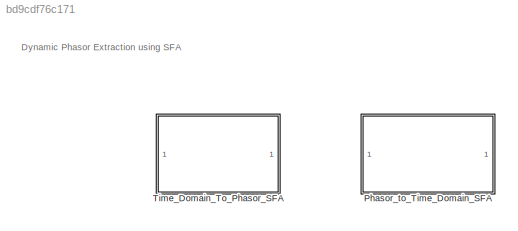
MODEL slx_bd9cdf76c171
KIND model
CONFIG AbsTol = auto
CONFIG EnableMultiTasking = off
CONFIG FixedStep = auto
CONFIG MaxStep = auto
CONFIG MinStep = auto
CONFIG RelTol = 1e-3
CONFIG SampleTimeConstraint = Unconstrained
CONFIG SolverName = VariableStepAuto
CONFIG StartTime = 0.0
CONFIG StopTime = 10.0
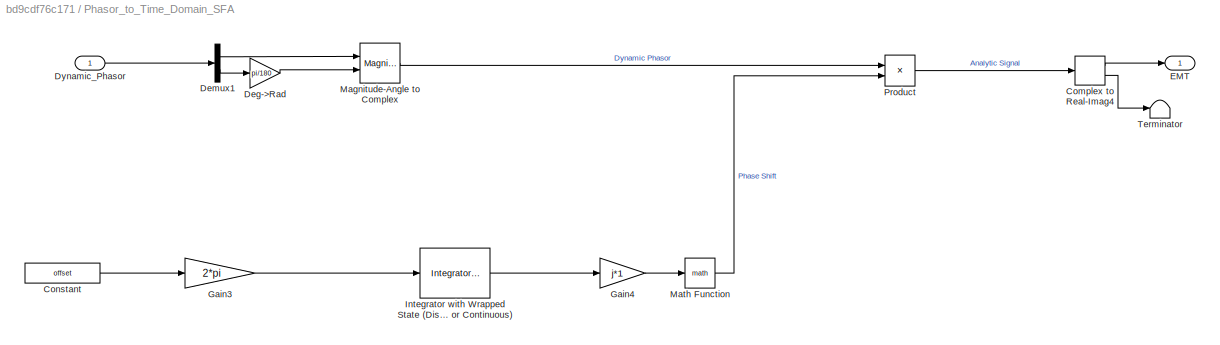
BLOCK [SubSystem] Phasor_to_Time_Domain_SFA
  Ports = [1, 1]
  RequestExecContextInheritance = off
BLOCK [ComplexToRealImag] Phasor_to_Time_Domain_SFA/Complex to Real-Imag4
  Ports = [1, 2]
BLOCK [Constant] Phasor_to_Time_Domain_SFA/Constant
  Value = offset
BLOCK [Gain] Phasor_to_Time_Domain_SFA/Deg->Rad
  Gain = pi/180
BLOCK [Demux] Phasor_to_Time_Domain_SFA/Demux1
  Outputs = 2
  Ports = [1, 2]
BLOCK [Inport] Phasor_to_Time_Domain_SFA/Dynamic_Phasor
BLOCK [Outport] Phasor_to_Time_Domain_SFA/EMT
BLOCK [Gain] Phasor_to_Time_Domain_SFA/Gain3
  Gain = 2*pi
BLOCK [Gain] Phasor_to_Time_Domain_SFA/Gain4
  Gain = j*1
BLOCK [Reference] Phasor_to_Time_Domain_SFA/Integrator with Wrapped State (Discrete or Continuous)  REF=eeGeneralControl/Integrator with
Wrapped State
(Discrete or Continuous)
  Ports = [1, 1]
  SourceBlock = eeGeneralControl/Integrator with\nWrapped State\n(Discrete or Continuous)
  SourceProductBaseCode = PS
  SourceType = Integrator with Wrapped State (Discrete or Continuous)
BLOCK [MagnitudeAngleToComplex] Phasor_to_Time_Domain_SFA/Magnitude-Angle to Complex
  Ports = [2, 1]
BLOCK [Math] Phasor_to_Time_Domain_SFA/Math Function
  Ports = [1, 1]
BLOCK [Product] Phasor_to_Time_Domain_SFA/Product
  Ports = [2, 1]
BLOCK [Terminator] Phasor_to_Time_Domain_SFA/Terminator
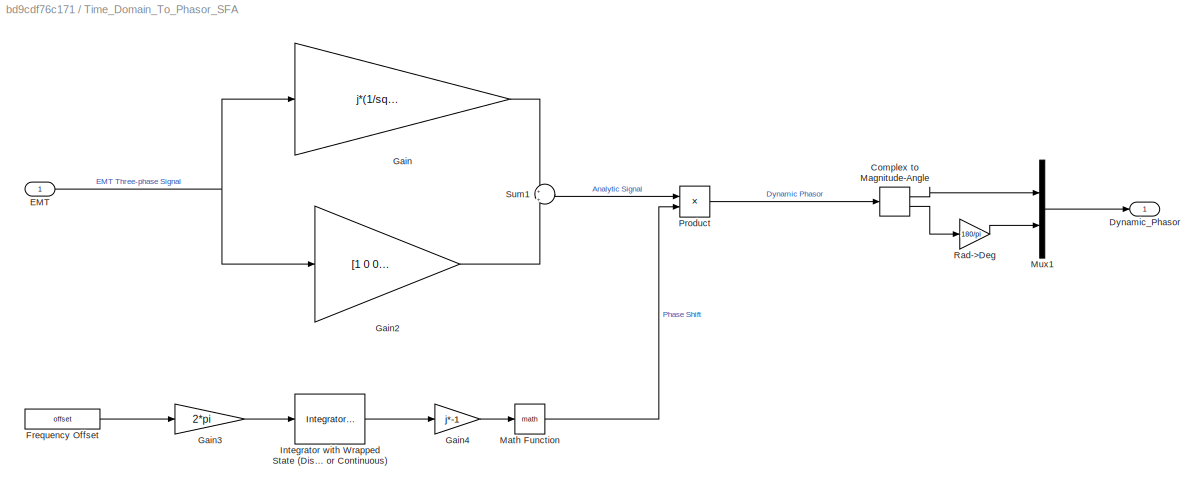
BLOCK [SubSystem] Time_Domain_To_Phasor_SFA
  Ports = [1, 1]
  RequestExecContextInheritance = off
BLOCK [ComplexToMagnitudeAngle] Time_Domain_To_Phasor_SFA/Complex to Magnitude-Angle
  Ports = [1, 2]
BLOCK [Outport] Time_Domain_To_Phasor_SFA/Dynamic_Phasor
BLOCK [Inport] Time_Domain_To_Phasor_SFA/EMT
BLOCK [Constant] Time_Domain_To_Phasor_SFA/Frequency Offset
  Value = offset
BLOCK [Gain] Time_Domain_To_Phasor_SFA/Gain
  Gain = j*(1/sqrt(3))*[0 1 -1; -1 0 1; 1 -1 0]
  Multiplication = Matrix(K*u)
BLOCK [Gain] Time_Domain_To_Phasor_SFA/Gain2
  Gain = [1  0 0; 0 1 0 ; 0 0 1]
  Multiplication = Matrix(K*u)
BLOCK [Gain] Time_Domain_To_Phasor_SFA/Gain3
  Gain = 2*pi
BLOCK [Gain] Time_Domain_To_Phasor_SFA/Gain4
  Gain = j*-1
BLOCK [Reference] Time_Domain_To_Phasor_SFA/Integrator with Wrapped State (Discrete or Continuous)  REF=eeGeneralControl/Integrator with
Wrapped State
(Discrete or Continuous)
  Ports = [1, 1]
  SourceBlock = eeGeneralControl/Integrator with\nWrapped State\n(Discrete or Continuous)
  SourceProductBaseCode = PS
  SourceType = Integrator with Wrapped State (Discrete or Continuous)
BLOCK [Math] Time_Domain_To_Phasor_SFA/Math Function
  Ports = [1, 1]
BLOCK [Mux] Time_Domain_To_Phasor_SFA/Mux1
  DisplayOption = bar
  Inputs = 2
  Ports = [2, 1]
BLOCK [Product] Time_Domain_To_Phasor_SFA/Product
  Ports = [2, 1]
BLOCK [Gain] Time_Domain_To_Phasor_SFA/Rad->Deg
  Gain = 180/pi
BLOCK [Sum] Time_Domain_To_Phasor_SFA/Sum1
  Inputs = +|+
  Ports = [2, 1]
ANNOTATION (root): Dynamic Phasor Extraction using SFA
LINE Phasor_to_Time_Domain_SFA/Complex to Real-Imag4:1 -> Phasor_to_Time_Domain_SFA/EMT:1
LINE Phasor_to_Time_Domain_SFA/Complex to Real-Imag4:2 -> Phasor_to_Time_Domain_SFA/Terminator:1
LINE Phasor_to_Time_Domain_SFA/Constant:1 -> Phasor_to_Time_Domain_SFA/Gain3:1
LINE Phasor_to_Time_Domain_SFA/Deg->Rad:1 -> Phasor_to_Time_Domain_SFA/Magnitude-Angle to Complex:2
LINE Phasor_to_Time_Domain_SFA/Demux1:1 -> Phasor_to_Time_Domain_SFA/Magnitude-Angle to Complex:1
LINE Phasor_to_Time_Domain_SFA/Demux1:2 -> Phasor_to_Time_Domain_SFA/Deg->Rad:1
LINE Phasor_to_Time_Domain_SFA/Dynamic_Phasor:1 -> Phasor_to_Time_Domain_SFA/Demux1:1
LINE Phasor_to_Time_Domain_SFA/Gain3:1 -> Phasor_to_Time_Domain_SFA/Integrator with Wrapped State (Discrete or Continuous):1
LINE Phasor_to_Time_Domain_SFA/Gain4:1 -> Phasor_to_Time_Domain_SFA/Math Function:1
LINE Phasor_to_Time_Domain_SFA/Integrator with Wrapped State (Discrete or Continuous):1 -> Phasor_to_Time_Domain_SFA/Gain4:1
LINE Phasor_to_Time_Domain_SFA/Magnitude-Angle to Complex:1 -> Phasor_to_Time_Domain_SFA/Product:1
LINE Phasor_to_Time_Domain_SFA/Math Function:1 -> Phasor_to_Time_Domain_SFA/Product:2
LINE Phasor_to_Time_Domain_SFA/Product:1 -> Phasor_to_Time_Domain_SFA/Complex to Real-Imag4:1
LINE Time_Domain_To_Phasor_SFA/Complex to Magnitude-Angle:1 -> Time_Domain_To_Phasor_SFA/Mux1:1
LINE Time_Domain_To_Phasor_SFA/Complex to Magnitude-Angle:2 -> Time_Domain_To_Phasor_SFA/Rad->Deg:1
NET Time_Domain_To_Phasor_SFA/EMT:1 -> Time_Domain_To_Phasor_SFA/Gain2:1, Time_Domain_To_Phasor_SFA/Gain:1
LINE Time_Domain_To_Phasor_SFA/Frequency Offset:1 -> Time_Domain_To_Phasor_SFA/Gain3:1
LINE Time_Domain_To_Phasor_SFA/Gain2:1 -> Time_Domain_To_Phasor_SFA/Sum1:2
LINE Time_Domain_To_Phasor_SFA/Gain3:1 -> Time_Domain_To_Phasor_SFA/Integrator with Wrapped State (Discrete or Continuous):1
LINE Time_Domain_To_Phasor_SFA/Gain4:1 -> Time_Domain_To_Phasor_SFA/Math Function:1
LINE Time_Domain_To_Phasor_SFA/Gain:1 -> Time_Domain_To_Phasor_SFA/Sum1:1
LINE Time_Domain_To_Phasor_SFA/Integrator with Wrapped State (Discrete or Continuous):1 -> Time_Domain_To_Phasor_SFA/Gain4:1
LINE Time_Domain_To_Phasor_SFA/Math Function:1 -> Time_Domain_To_Phasor_SFA/Product:2
LINE Time_Domain_To_Phasor_SFA/Mux1:1 -> Time_Domain_To_Phasor_SFA/Dynamic_Phasor:1
LINE Time_Domain_To_Phasor_SFA/Product:1 -> Time_Domain_To_Phasor_SFA/Complex to Magnitude-Angle:1
LINE Time_Domain_To_Phasor_SFA/Rad->Deg:1 -> Time_Domain_To_Phasor_SFA/Mux1:2
LINE Time_Domain_To_Phasor_SFA/Sum1:1 -> Time_Domain_To_Phasor_SFA/Product:1
note: NET lines group one-source signal fan-out (src -> all destinations, sorted); 1:1 wires keep LINE
